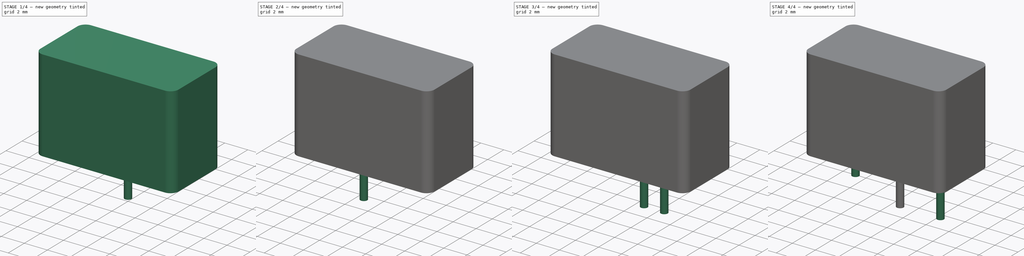
[diagram: build sequence overview — one tinted view per stage of 4, left to right]
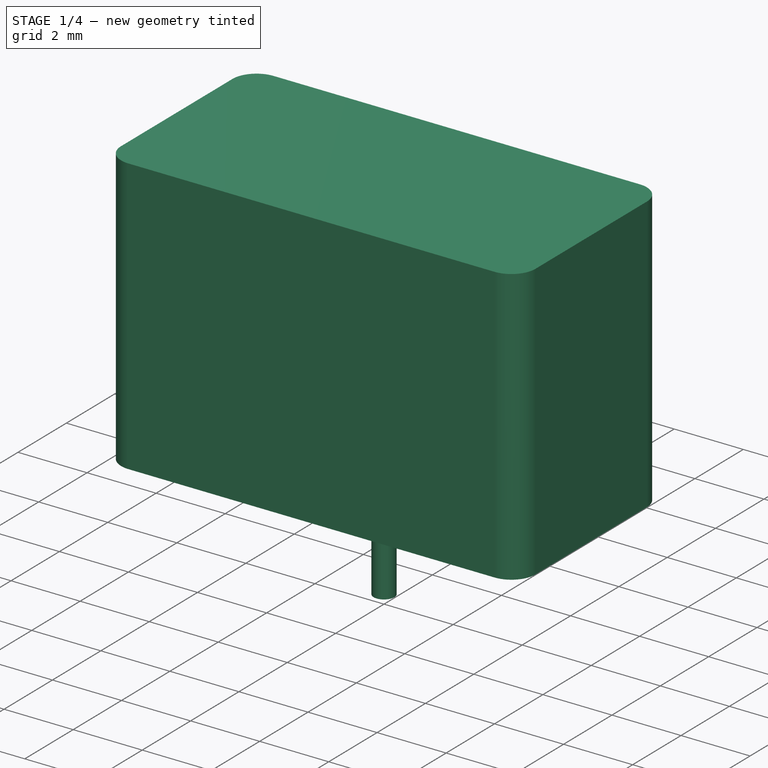
[diagram: stage 1 of 4 — iso view after this stage's code; geometry added in this stage tinted green]
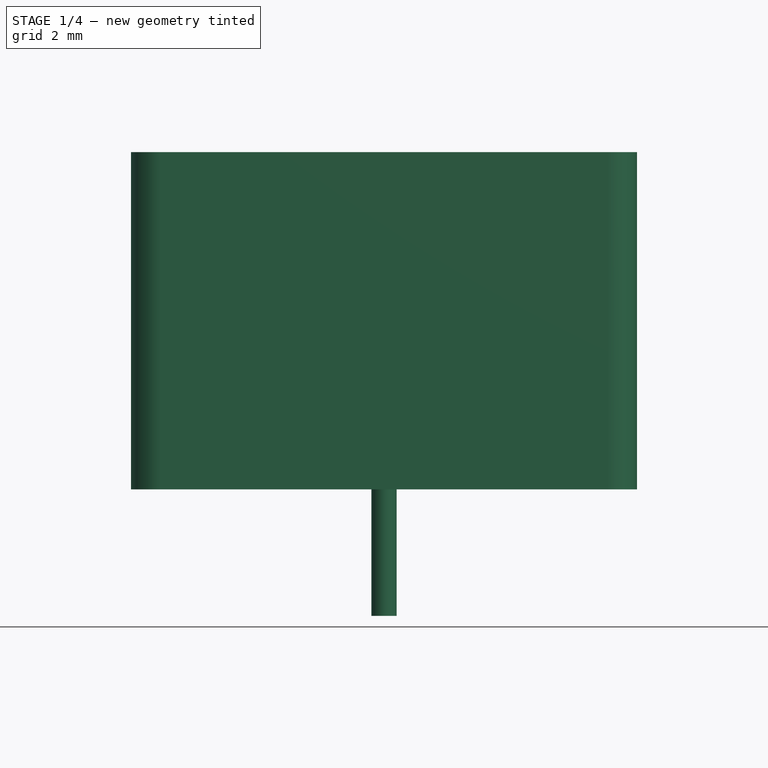
[diagram: stage 1 of 4 — front view after this stage's code; geometry added in this stage tinted green]
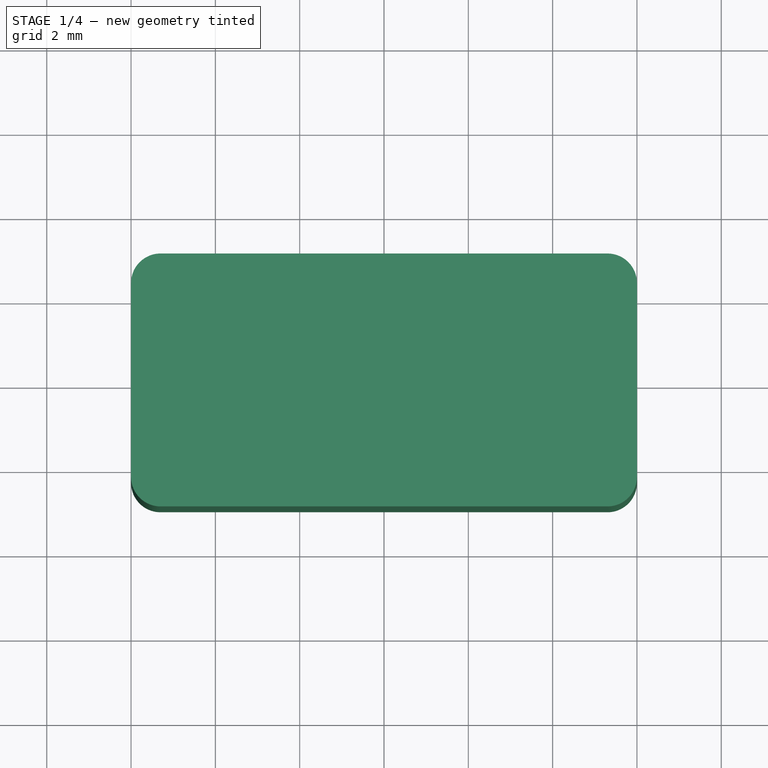
[diagram: stage 1 of 4 — top view after this stage's code; geometry added in this stage tinted green]
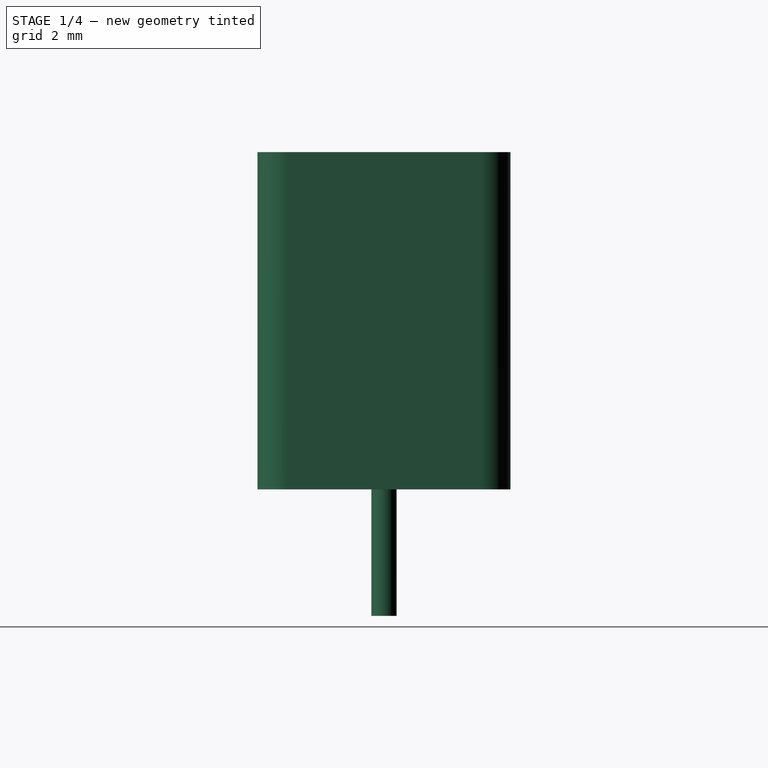
[diagram: stage 1 of 4 — right view after this stage's code; geometry added in this stage tinted green]
FCSTD DOCUMENT  (FreeCAD 0.19R24291 (Git))
Label: Delay_Line_Custom_Atari_ST
License: All rights reserved
LicenseURL: http://en.wikipedia.org/wiki/All_rights_reserved
objects: PartDesign::Body×11, PartDesign::FeatureBase×9, Sketcher::SketchObject×2, PartDesign::Pad×2, PartDesign::Fillet×1
note: 28 computed .brp shape members not serialized (recipe doc carries the construction recipe); baked Part::Feature solids carry a one-line shape summary decoded from their .brp

FEATURE [Sketcher::SketchObject] Sketch
  FullyConstrained = true
  MapMode = 5
  Support = -> [XY_Plane]
  sketch-geometry (1):
    g0: Circle CenterX=0 CenterY=0 CenterZ=0 NormalX=0 NormalY=0 NormalZ=1 AngleXU=0 Radius=0.3
  constraints (2):
    c: Coincident(g0,g-1)
    c: Diameter(g0) = 0.6
FEATURE [PartDesign::Pad] Pad
  Direction = (0.9,1,1)
  Length = 3
  Length2 = 100
  Profile = -> Sketch
  Reversed = true
  Type = 0
FEATURE [PartDesign::Body] Body009  label="Pin_9"
  Group = -> [Clone008]
  Origin = -> Origin009
  Placement = pos=(0,2.4892,0) rot=(0,0,1;0rad)
  Tip = -> Clone008
FEATURE [Sketcher::SketchObject] Sketch001
  FullyConstrained = true
  MapMode = 5
  Support = -> [XY_Plane010]
  sketch-geometry (4):
    g0: LineSegment StartX=-6 StartY=3 StartZ=0 EndX=6 EndY=3 EndZ=0
    g1: LineSegment StartX=6 StartY=3 StartZ=0 EndX=6 EndY=-3 EndZ=0
    g2: LineSegment StartX=6 StartY=-3 StartZ=0 EndX=-6 EndY=-3 EndZ=0
    g3: LineSegment StartX=-6 StartY=-3 StartZ=0 EndX=-6 EndY=3 EndZ=0
  constraints (12):
    c: Coincident(g0,g1)
    c: Coincident(g1,g2)
    c: Coincident(g2,g3)
    c: Coincident(g3,g0)
    c: Horizontal(g0)
    c: Horizontal(g2)
    c: Vertical(g1)
    c: Vertical(g3)
    c: Distance(g0) = 12
    c: Distance(g1) = 6
    c: DistanceY(g-1,g0) = 3
    c: DistanceX(g-1,g0) = 6
FEATURE [PartDesign::Pad] Pad001
  Direction = (1,1,1)
  Length = 8
  Length2 = 100
  Profile = -> Sketch001
  Type = 0
FEATURE [PartDesign::Fillet] Fillet
  Base = -> Pad001 [Edge2,Edge5,Edge8,Edge1]
  BaseFeature = -> Pad001
  Radius = 0.7
  SupportTransform = false
FEATURE [PartDesign::Body] Body010  label="Case"
  Group = -> [Sketch001,Pad001,Fillet]
  Origin = -> Origin010
  Tip = -> Fillet
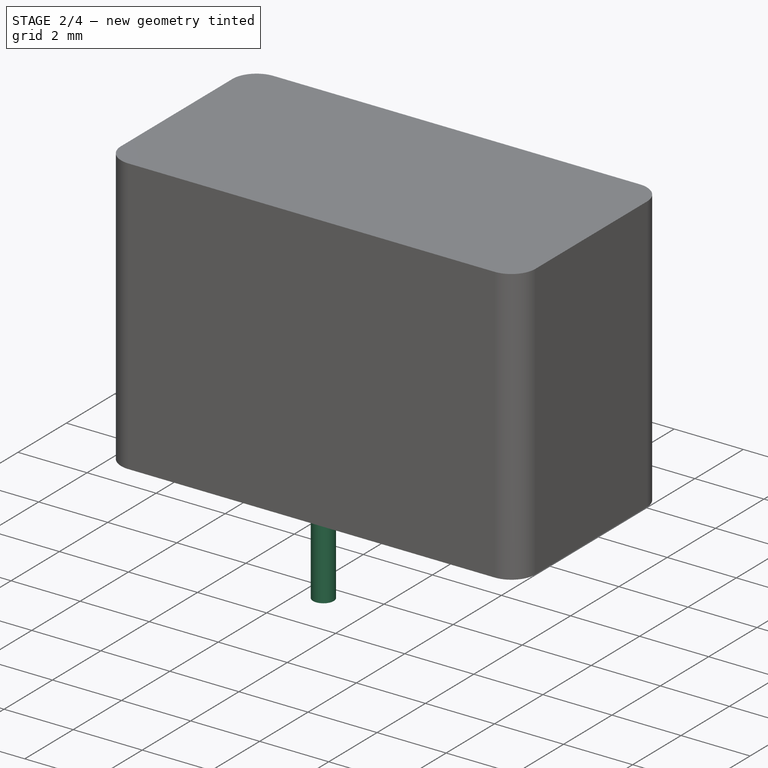
[diagram: stage 2 of 4 — iso view after this stage's code; geometry added in this stage tinted green]
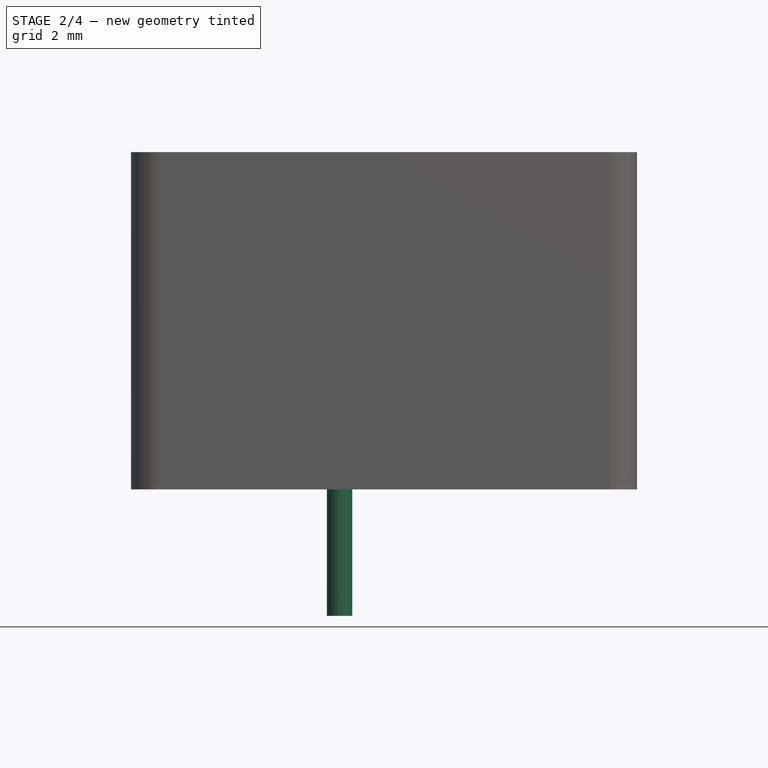
[diagram: stage 2 of 4 — front view after this stage's code; geometry added in this stage tinted green]
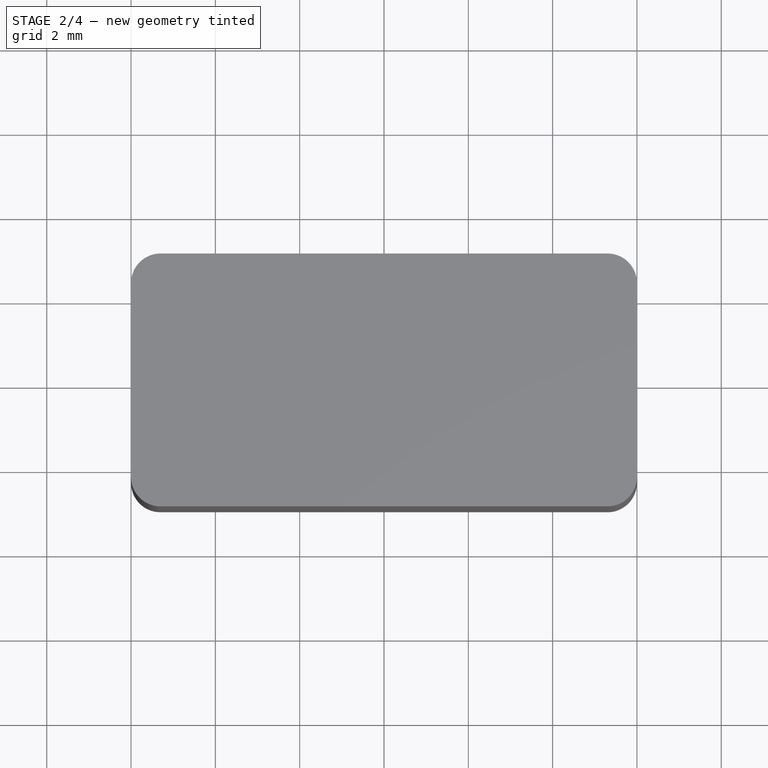
[diagram: stage 2 of 4 — top view after this stage's code; geometry added in this stage tinted green]
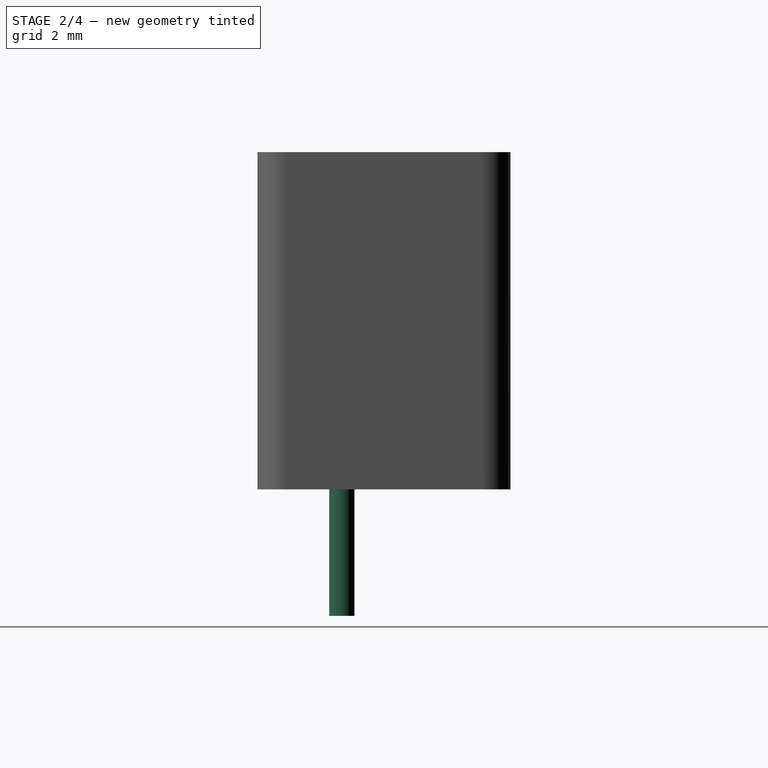
[diagram: stage 2 of 4 — right view after this stage's code; geometry added in this stage tinted green]
FEATURE [PartDesign::Body] Body002  label="Pin_10"
  Group = -> [Clone001]
  Origin = -> Origin002
  Placement = pos=(3.5052,0,0) rot=(0,0,1;0rad)
  Tip = -> Clone001
FEATURE [PartDesign::FeatureBase] Clone002
  BaseFeature = -> Body
  Placement = pos=(-4.5593,-1,0) rot=(0,0,1;0rad)
FEATURE [PartDesign::Body] Body003  label="Pin_2"
  Group = -> [Clone002]
  Origin = -> Origin003
  Placement = pos=(1.7526,0,0) rot=(0,0,1;0rad)
  Tip = -> Clone002
FEATURE [PartDesign::FeatureBase] Clone003
  BaseFeature = -> Body003
  Placement = pos=(1.7526,0,0) rot=(0,0,1;0rad)
FEATURE [PartDesign::Body] Body004  label="Pin_3"
  Group = -> [Clone003]
  Origin = -> Origin004
  Placement = pos=(1.7526,0,0) rot=(0,0,1;0rad)
  Tip = -> Clone003
FEATURE [PartDesign::FeatureBase] Clone004
  BaseFeature = -> Body004
  Placement = pos=(1.7526,0,0) rot=(0,0,1;0rad)
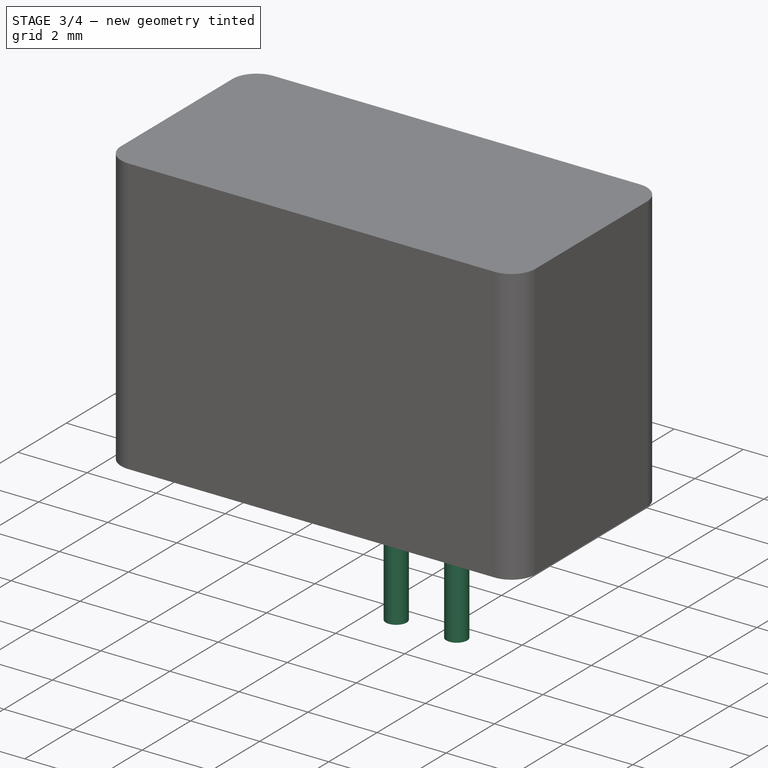
[diagram: stage 3 of 4 — iso view after this stage's code; geometry added in this stage tinted green]
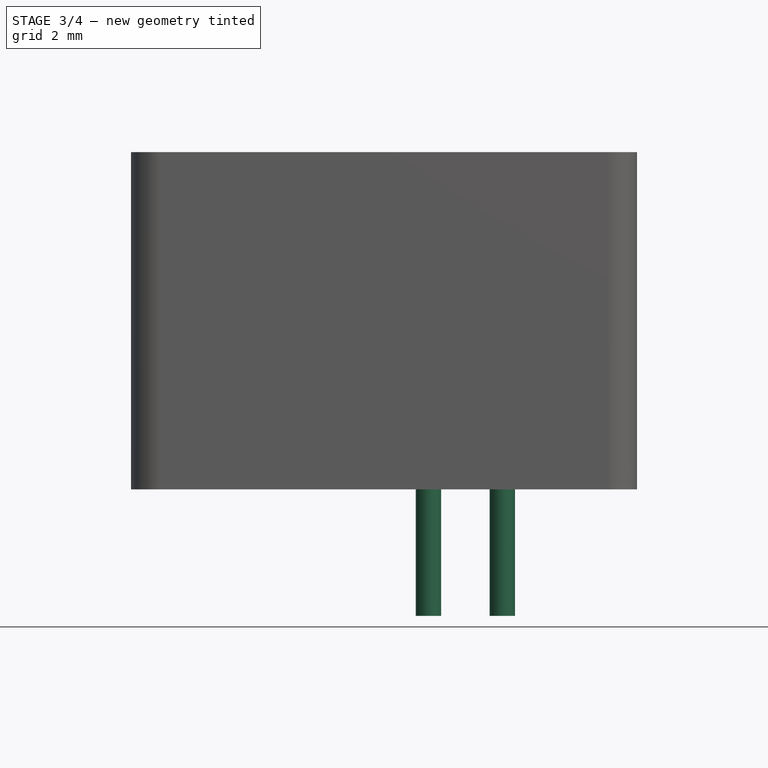
[diagram: stage 3 of 4 — front view after this stage's code; geometry added in this stage tinted green]
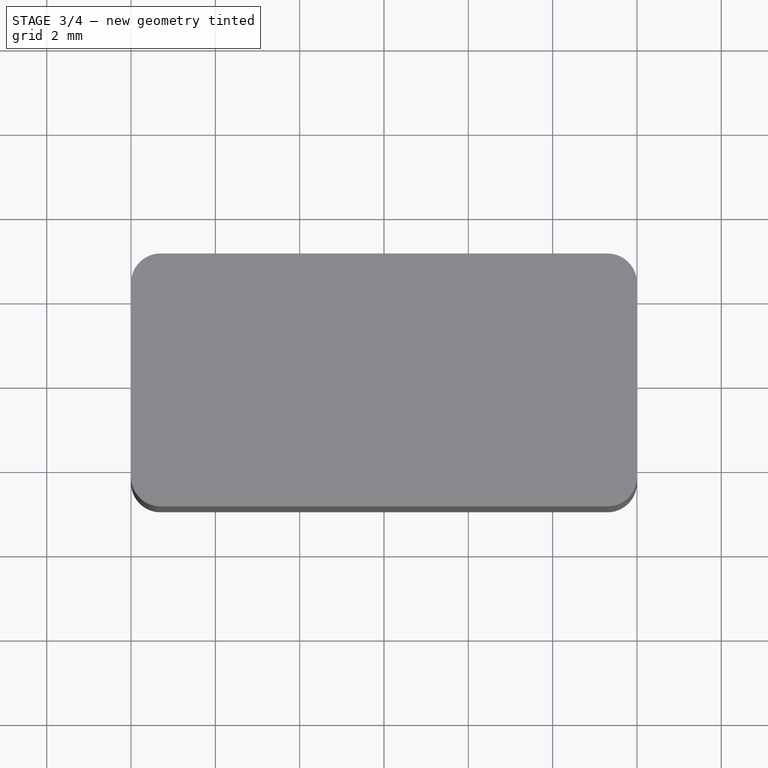
[diagram: stage 3 of 4 — top view after this stage's code; geometry added in this stage tinted green]
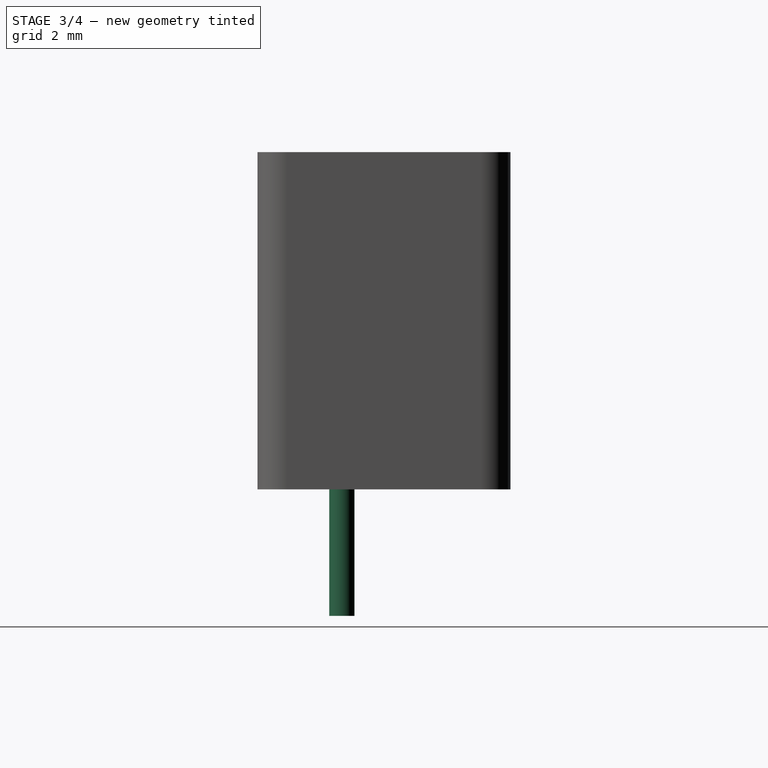
[diagram: stage 3 of 4 — right view after this stage's code; geometry added in this stage tinted green]
FEATURE [PartDesign::Body] Body005  label="Pin_4"
  Group = -> [Clone004]
  Origin = -> Origin005
  Placement = pos=(2.1082,0,0) rot=(0,0,1;0rad)
  Tip = -> Clone004
FEATURE [PartDesign::FeatureBase] Clone005
  BaseFeature = -> Body005
  Placement = pos=(2.1082,0,0) rot=(0,0,1;0rad)
FEATURE [PartDesign::Body] Body006  label="Pin_5"
  Group = -> [Clone005]
  Origin = -> Origin006
  Placement = pos=(1.7526,0,0) rot=(0,0,1;0rad)
  Tip = -> Clone005
FEATURE [PartDesign::FeatureBase] Clone006
  BaseFeature = -> Body006
  Placement = pos=(1.7526,0,0) rot=(0,0,1;0rad)
FEATURE [PartDesign::Body] Body008  label="Pin_7"
  Group = -> [Clone007]
  Origin = -> Origin008
  Placement = pos=(0,2.4892,0) rot=(0,0,1;0rad)
  Tip = -> Clone007
FEATURE [PartDesign::FeatureBase] Clone008
  BaseFeature = -> Body005
  Placement = pos=(2.1082,0,0) rot=(0,0,1;0rad)
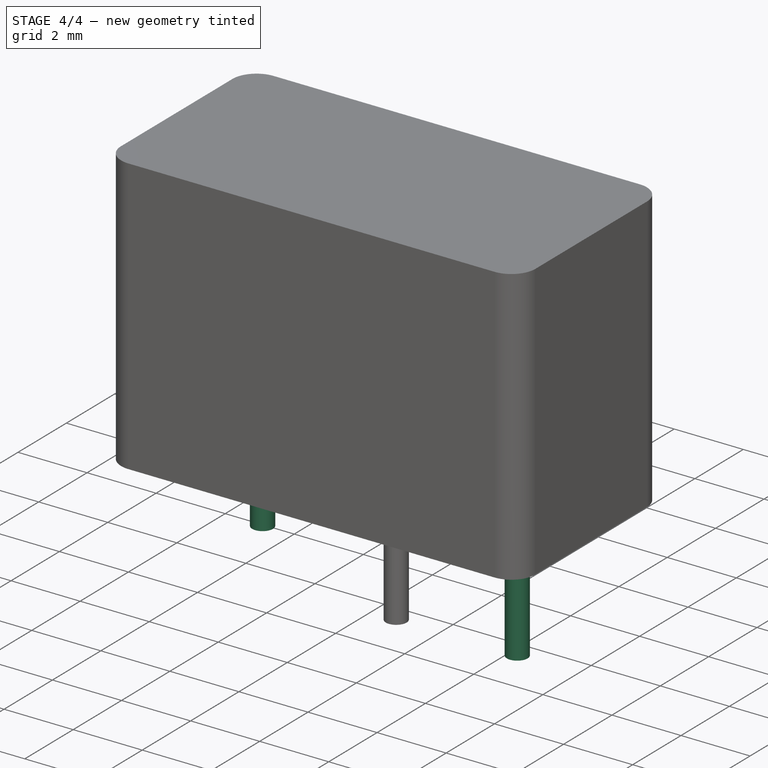
[diagram: stage 4 of 4 — iso view after this stage's code; geometry added in this stage tinted green]
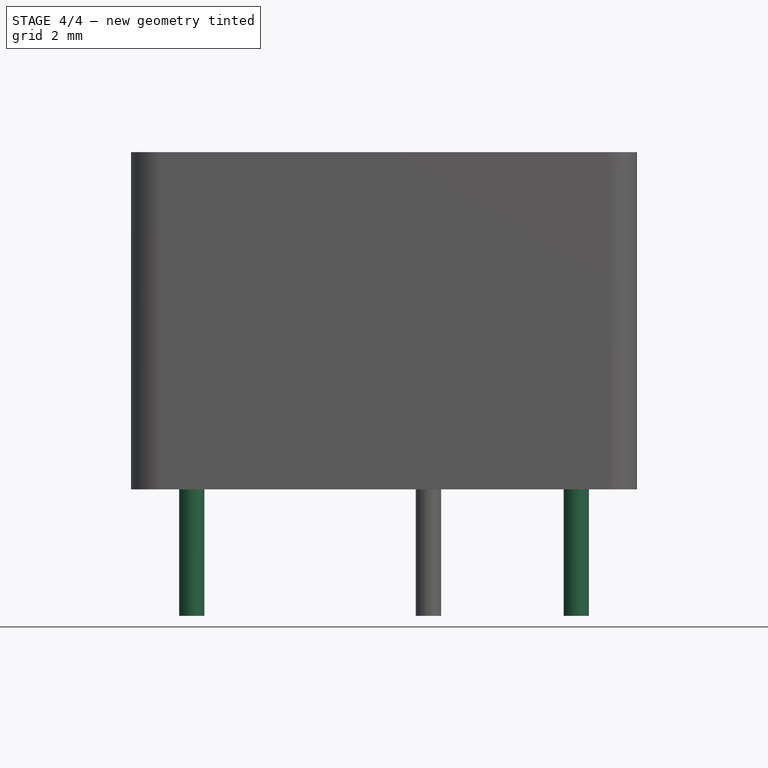
[diagram: stage 4 of 4 — front view after this stage's code; geometry added in this stage tinted green]
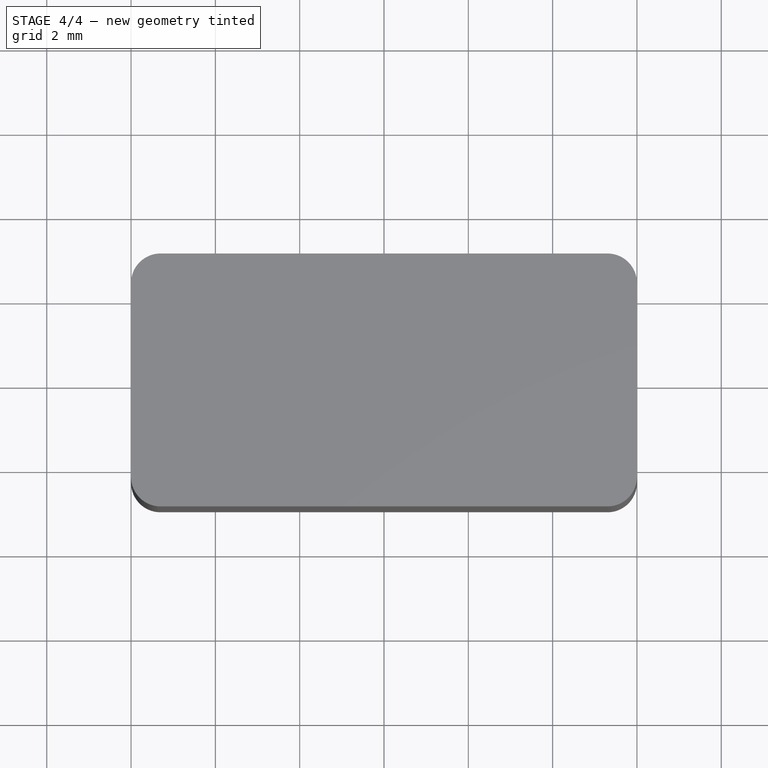
[diagram: stage 4 of 4 — top view after this stage's code; geometry added in this stage tinted green]
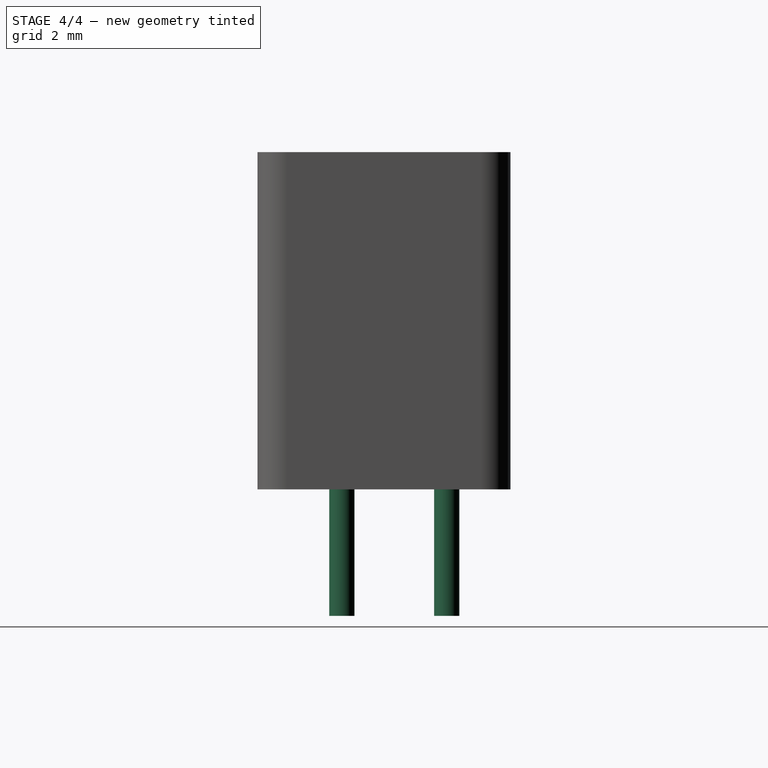
[diagram: stage 4 of 4 — right view after this stage's code; geometry added in this stage tinted green]
FEATURE [PartDesign::Body] Body  label="Pin_1"
  Group = -> [Sketch,Pad]
  Origin = -> Origin
  Placement = pos=(-4.5593,-1,0) rot=(0,0,1;0rad)
  Tip = -> Pad
FEATURE [PartDesign::FeatureBase] Clone
  BaseFeature = -> Body
  Placement = pos=(-4.5593,-1,0) rot=(0,0,1;0rad)
FEATURE [PartDesign::Body] Body001  label="Pin_12"
  Group = -> [Clone]
  Origin = -> Origin001
  Placement = pos=(0,2.4892,0) rot=(0,0,1;0rad)
  Tip = -> Clone
FEATURE [PartDesign::FeatureBase] Clone001
  BaseFeature = -> Body001
  Placement = pos=(0,2.4892,0) rot=(0,0,1;0rad)
FEATURE [PartDesign::Body] Body007  label="Pin_6"
  Group = -> [Clone006]
  Origin = -> Origin007
  Placement = pos=(1.7526,0,0) rot=(0,0,1;0rad)
  Tip = -> Clone006
FEATURE [PartDesign::FeatureBase] Clone007
  BaseFeature = -> Body007
  Placement = pos=(1.7526,0,0) rot=(0,0,1;0rad)
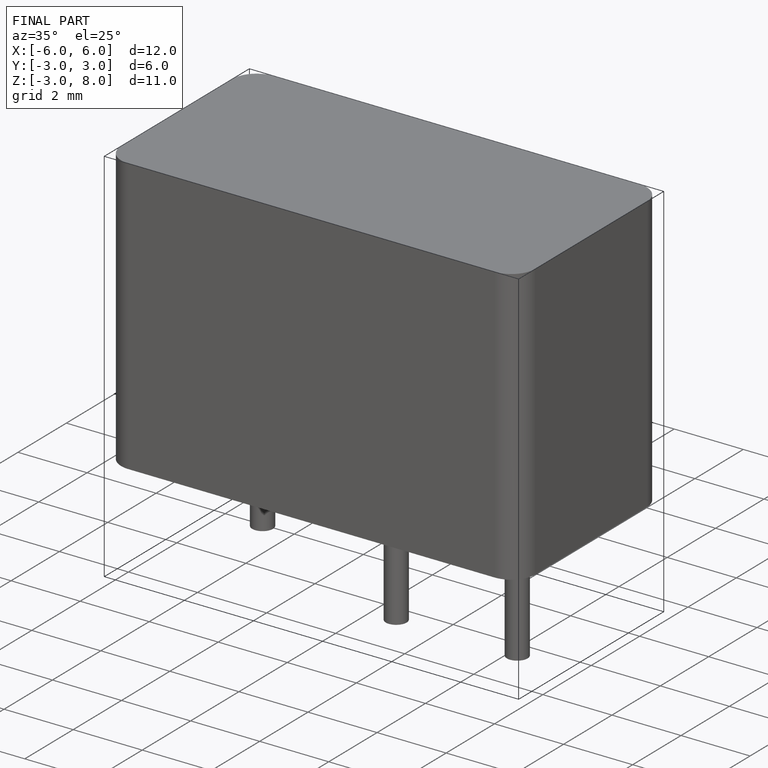
[diagram: finished part — iso view with bounding-box wireframe]
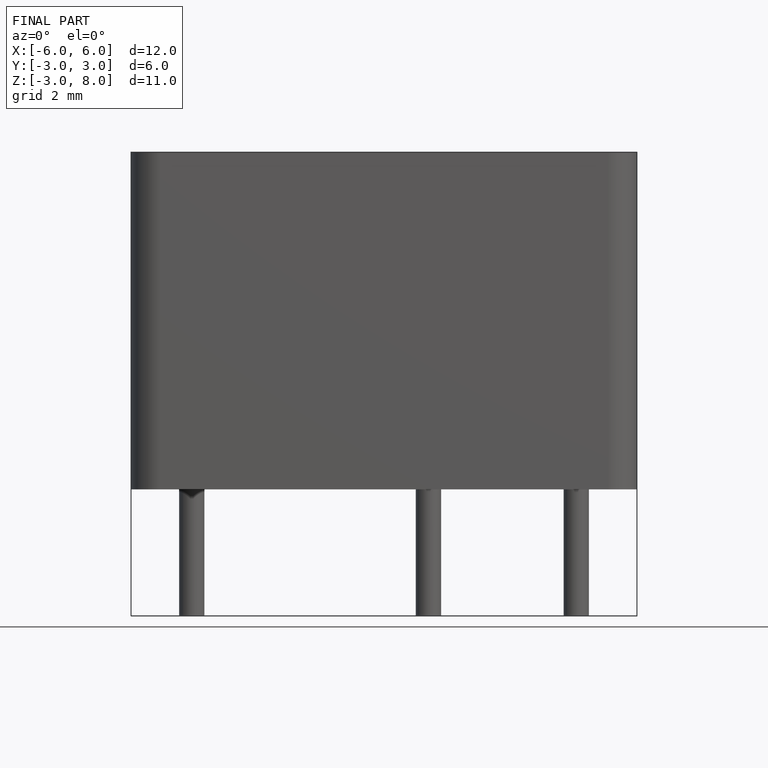
[diagram: finished part — front view with bounding-box wireframe]
